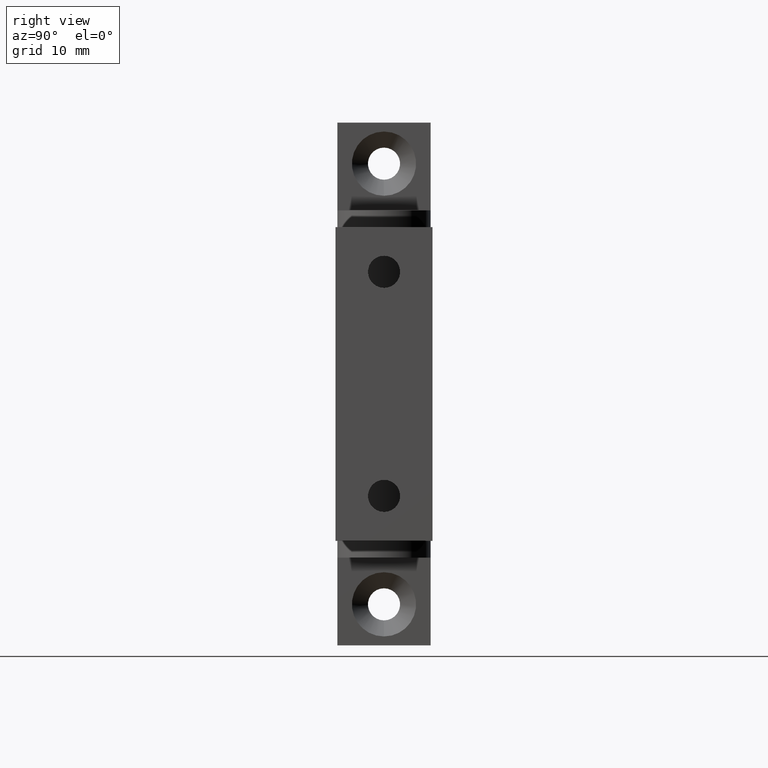
[diagram: clean part render]
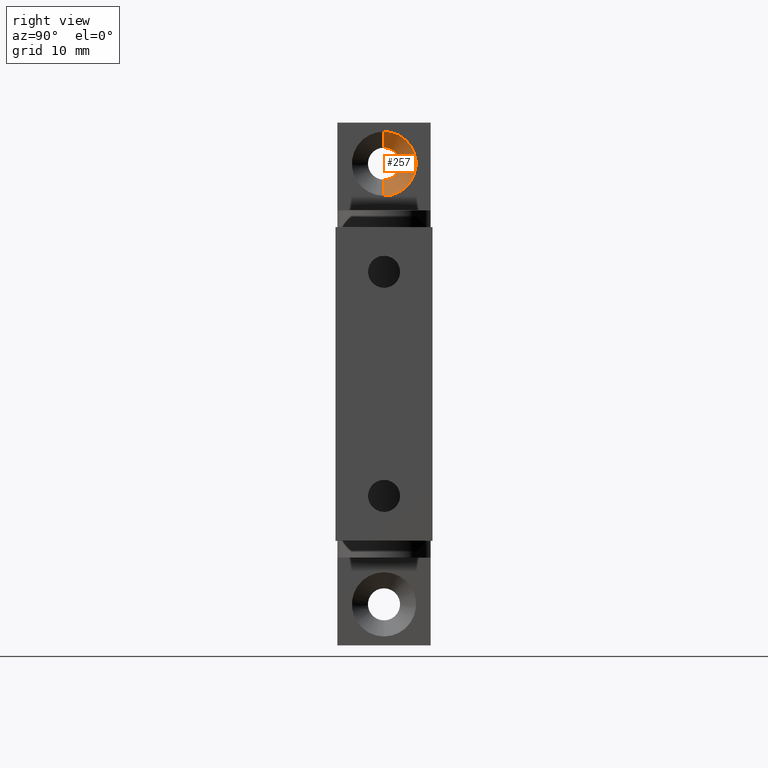
[diagram: same view with one face highlighted and labeled with its STEP entity id]
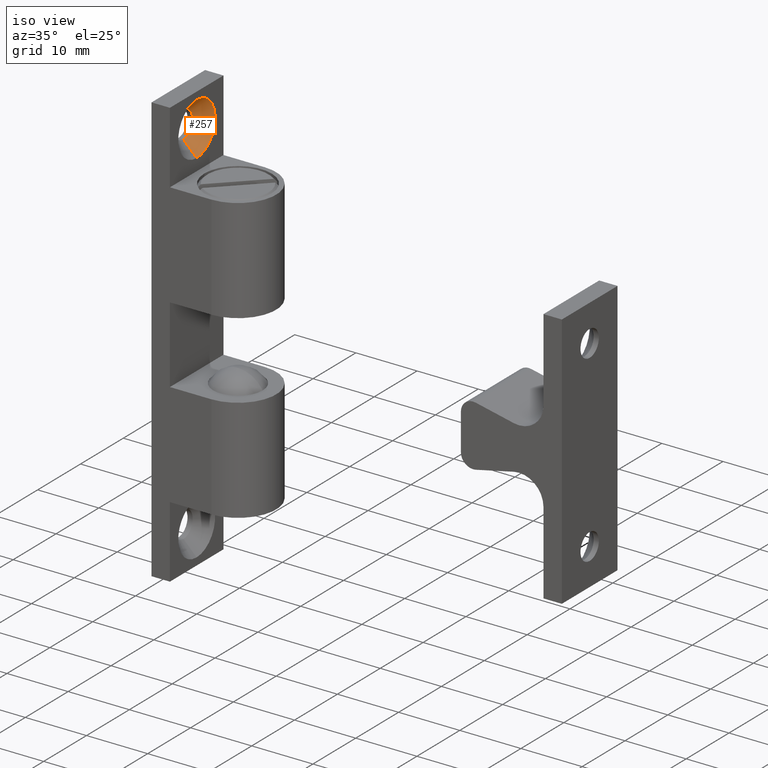
[diagram: same view with one face highlighted and labeled with its STEP entity id]
A machine part, right view. The second image highlights one B-rep face of the part: STEP entity #257.
A second angle (iso view) of the same face is appended — the face is thin or edge-on in the first view.
In plain terms, the highlighted face is a freeform B-spline surface patch.
Its self-contained STEP definition (entity closure, byte-faithful):
#257=ADVANCED_FACE('',(#821),#820,.F.);
#820=( BOUNDED_SURFACE() B_SPLINE_SURFACE( 2,1,((#1351,#1352),(#1353,#1354),(#1355,#1356),(#1357,#1358),(#1359,#1360)), .UNSPECIFIED.,.F.,.F.,.F.) B_SPLINE_SURFACE_WITH_KNOTS((3,2,3),(2,2),(0.00000000000E+00,5.00000000000E-01,1.00000000000E+00),(0.00000000000E+00,1.00000000000E+00), .UNSPECIFIED. ) GEOMETRIC_REPRESENTATION_ITEM() RATIONAL_B_SPLINE_SURFACE(((1.00000000000E+00,1.00000000000E+00),(7.07106781187E-01,7.07106781187E-01),(1.00000000000E+00,1.00000000000E+00),(7.07106781187E-01,7.07106781187E-01),(1.00000000000E+00,1.00000000000E+00))) REPRESENTATION_ITEM('') SURFACE() );
#821=FACE_OUTER_BOUND('',#1361,.T.);
#1351=CARTESIAN_POINT('',(8.50000000000E-01,2.63299061817E-16,2.73499000000E+01));
#1352=CARTESIAN_POINT('',(3.00000000000E+00,5.26598123633E-16,2.51999000000E+01));
#1353=CARTESIAN_POINT('',(8.50000000000E-01,2.15000000000E+00,2.73499000000E+01));
#1354=CARTESIAN_POINT('',(3.00000000000E+00,4.30000000000E+00,2.51999000000E+01));
#1355=CARTESIAN_POINT('',(8.50000000000E-01,2.15000000000E+00,2.94999000000E+01));
#1356=CARTESIAN_POINT('',(3.00000000000E+00,4.30000000000E+00,2.94999000000E+01));
#1357=CARTESIAN_POINT('',(8.50000000000E-01,2.15000000000E+00,3.16499000000E+01));
#1358=CARTESIAN_POINT('',(3.00000000000E+00,4.30000000000E+00,3.37999000000E+01));
#1359=CARTESIAN_POINT('',(8.50000000000E-01,1.97215226305E-31,3.16499000000E+01));
#1360=CARTESIAN_POINT('',(3.00000000000E+00,1.97215226305E-31,3.37999000000E+01));
#1361=EDGE_LOOP('',(#1736,#1737,#1738,#1739));
#1736=ORIENTED_EDGE('',*,*,#1944,.F.);
#1737=ORIENTED_EDGE('',*,*,#1959,.F.);
#1738=ORIENTED_EDGE('',*,*,#1961,.T.);
#1739=ORIENTED_EDGE('',*,*,#1960,.T.);
#1944=EDGE_CURVE('',#2870,#2871,#2872,.T.);
#1959=EDGE_CURVE('',#2967,#2870,#2974,.T.);
#1960=EDGE_CURVE('',#2966,#2871,#2980,.T.);
#1961=EDGE_CURVE('',#2967,#2966,#2986,.T.);
#2870=VERTEX_POINT('',#3673);
#2871=VERTEX_POINT('',#3674);
#2872=CIRCLE('',#3678,4.30000000000E+00);
#2966=VERTEX_POINT('',#3739);
#2967=VERTEX_POINT('',#3740);
#2974=(BOUNDED_CURVE() B_SPLINE_CURVE(1,(#3745,#3746),.UNSPECIFIED.,.F.,.F.) B_SPLINE_CURVE_WITH_KNOTS((2,2),(0.00000000000E+00,1.00000000000E+00),.UNSPECIFIED.) CURVE() GEOMETRIC_REPRESENTATION_ITEM() RATIONAL_B_SPLINE_CURVE((1.00000000000E+00,1.00000000000E+00)) REPRESENTATION_ITEM('') );
#2980=(BOUNDED_CURVE() B_SPLINE_CURVE(1,(#3747,#3748),.UNSPECIFIED.,.F.,.F.) B_SPLINE_CURVE_WITH_KNOTS((2,2),(0.00000000000E+00,1.00000000000E+00),.UNSPECIFIED.) CURVE() GEOMETRIC_REPRESENTATION_ITEM() RATIONAL_B_SPLINE_CURVE((7.50000000000E-01,7.50000000000E-01)) REPRESENTATION_ITEM('') );
#2986=CIRCLE('',#3752,2.15000000000E+00);
#3673=CARTESIAN_POINT('',(3.00000000000E+00,0.00000000000E+00,3.37999000000E+01));
#3674=CARTESIAN_POINT('',(3.00000000000E+00,4.44089209850E-16,2.51999000000E+01));
#3675=CARTESIAN_POINT('',(3.00000000000E+00,0.00000000000E+00,2.94999000000E+01));
#3676=DIRECTION('',(-1.00000000000E+00,0.00000000000E+00,0.00000000000E+00));
#3677=DIRECTION('',(0.00000000000E+00,-1.22460635382E-16,1.00000000000E+00));
#3678=AXIS2_PLACEMENT_3D('',#3675,#3676,#3677);
#3739=CARTESIAN_POINT('',(8.50000000000E-01,2.22044604925E-16,2.73499000000E+01));
#3740=CARTESIAN_POINT('',(8.50000000000E-01,0.00000000000E+00,3.16499000000E+01));
#3745=CARTESIAN_POINT('',(8.50000000000E-01,-5.26580732144E-16,3.16499000000E+01));
#3746=CARTESIAN_POINT('',(3.00000000000E+00,-1.05316146429E-15,3.37999000000E+01));
#3747=CARTESIAN_POINT('',(8.50000000000E-01,5.92118946467E-16,2.73499000000E+01));
#3748=CARTESIAN_POINT('',(3.00000000000E+00,1.03620815632E-15,2.51999000000E+01));
#3749=CARTESIAN_POINT('',(8.50000000000E-01,0.00000000000E+00,2.94999000000E+01));
#3750=DIRECTION('',(-1.00000000000E+00,0.00000000000E+00,0.00000000000E+00));
#3751=DIRECTION('',(0.00000000000E+00,-1.22460635382E-16,1.00000000000E+00));
#3752=AXIS2_PLACEMENT_3D('',#3749,#3750,#3751);